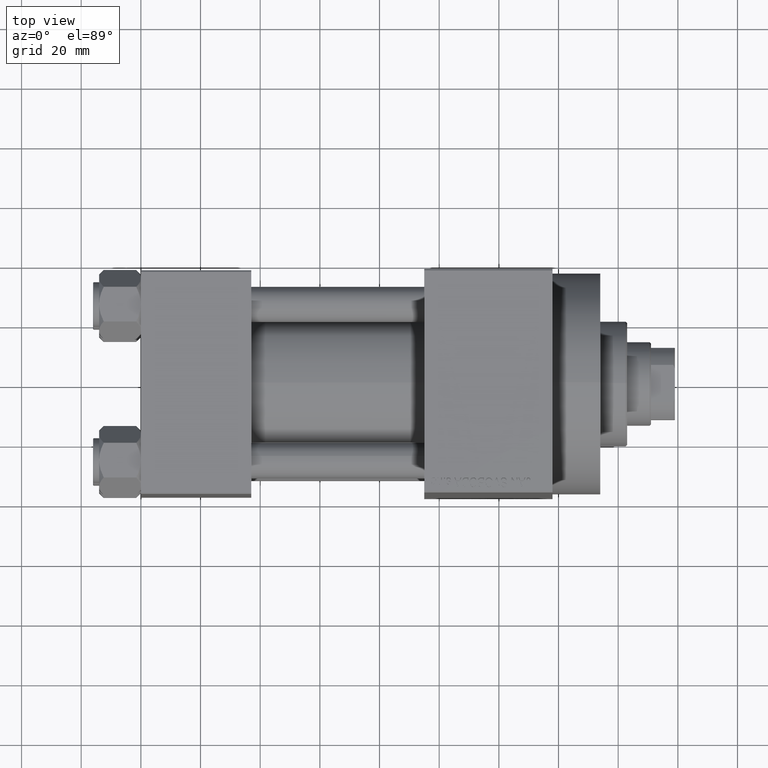
[diagram: clean part render]
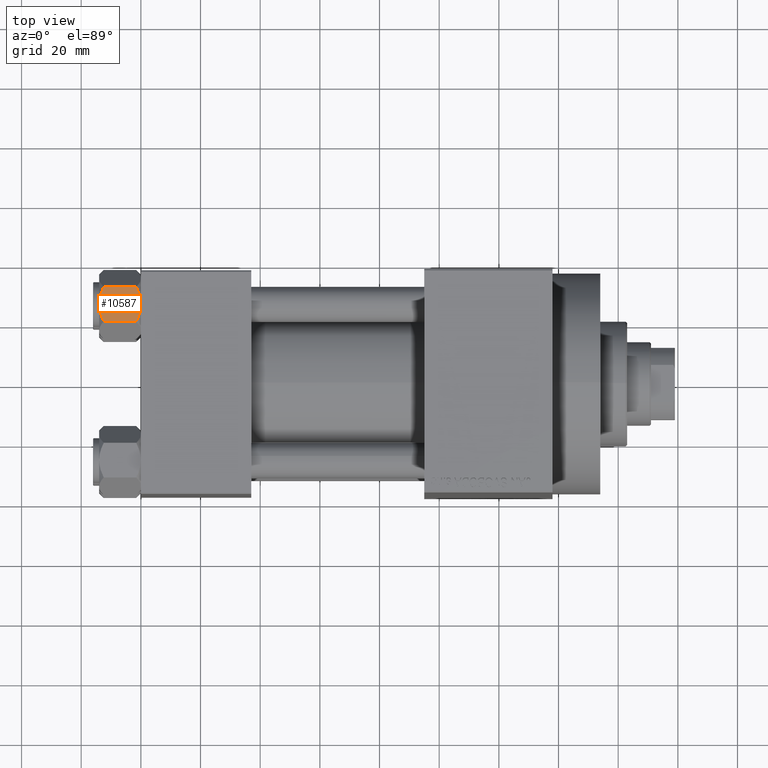
[diagram: same view with one face highlighted and labeled with its STEP entity id]
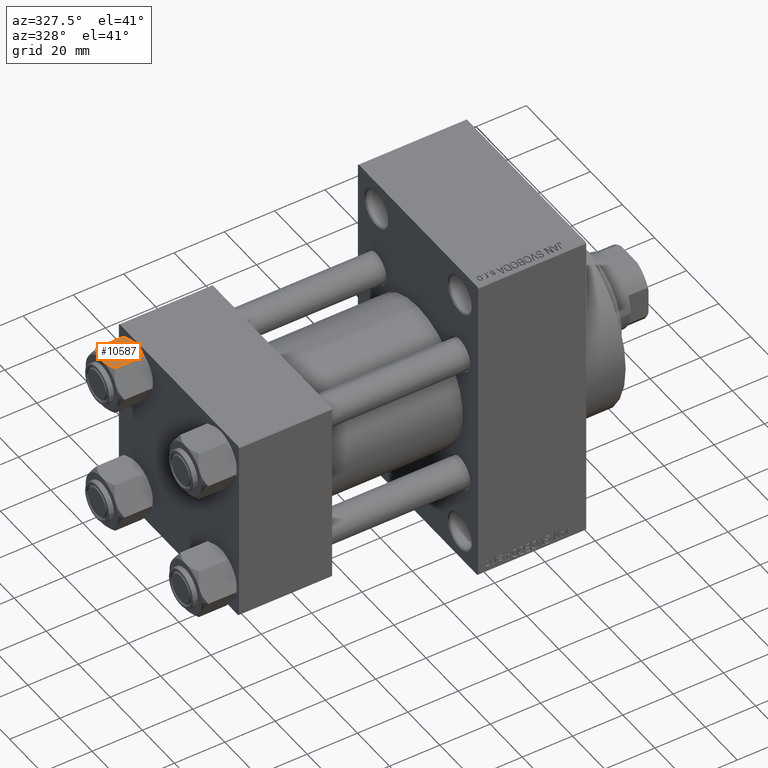
[diagram: same view with one face highlighted and labeled with its STEP entity id]
A machine part, top view. The second image highlights one B-rep face of the part: STEP entity #10587.
A second angle (auxiliary view) of the same face is appended — the face is thin or edge-on in the first view.
In plain terms, the highlighted planar face has unit normal (0, -0, -1).
Its self-contained STEP definition (entity closure, byte-faithful):
#7 = VERTEX_POINT ( 'NONE', #5562 ) ;
#352 = CARTESIAN_POINT ( 'NONE',  ( 5.359707691559671972, -10.06321519197517667, -12.66836134619534882 ) ) ;
#746 = DIRECTION ( 'NONE',  ( -0.000000000000000000, -0.000000000000000000, 1.000000000000000000 ) ) ;
#829 = CARTESIAN_POINT ( 'NONE',  ( -5.359707691559672860, -10.06321519197517844, -1.331638653804651851 ) ) ;
#2285 = EDGE_CURVE ( 'NONE', #33653, #7, #34844, .T. ) ;
#3007 = CARTESIAN_POINT ( 'NONE',  ( 5.810000000000000497, -10.06321519197517667, -12.44321519197518811 ) ) ;
#3084 = VERTEX_POINT ( 'NONE', #16521 ) ;
#4303 = CARTESIAN_POINT ( 'NONE',  ( 3.960942496020604331, -10.06321519197518022, -0.7115728323610380768 ) ) ;
#4661 = CARTESIAN_POINT ( 'NONE',  ( -2.013954290287968352, -10.06321519197517844, -0.1570111679759963463 ) ) ;
#5562 = CARTESIAN_POINT ( 'NONE',  ( 5.810000000000000497, -10.06321519197517667, -1.556784808024811895 ) ) ;
#6783 = CARTESIAN_POINT ( 'NONE',  ( 1.502314598737159623E-15, -10.06321519197518199, -14.00000000000000000 ) ) ;
#7096 = CARTESIAN_POINT ( 'NONE',  ( -5.810000000000000497, -10.06321519197517844, -14.00000000000000000 ) ) ;
#7391 = VERTEX_POINT ( 'NONE', #14021 ) ;
#7664 = LINE ( 'NONE', #22252, #33289 ) ;
#7709 = EDGE_CURVE ( 'NONE', #3084, #7391, #41711, .T. ) ;
#10587 = ADVANCED_FACE ( 'NONE', ( #47008 ), #17427, .F. ) ;
#11347 = CARTESIAN_POINT ( 'NONE',  ( -4.900668367960793859, -10.06321519197517667, -1.121556683709771463 ) ) ;
#11947 = ORIENTED_EDGE ( 'NONE', *, *, #41982, .F. ) ;
#13500 = CARTESIAN_POINT ( 'NONE',  ( -3.960942496020602555, -10.06321519197517844, -13.28842716763896270 ) ) ;
#13963 = CARTESIAN_POINT ( 'NONE',  ( -5.810000000000000497, -10.06321519197517844, -12.44321519197518633 ) ) ;
#13976 = CARTESIAN_POINT ( 'NONE',  ( 3.474497094393254493, -10.06321519197517667, -13.42730390989572520 ) ) ;
#14021 = CARTESIAN_POINT ( 'NONE',  ( -5.810000000000000497, -10.06321519197517844, -12.44321519197518633 ) ) ;
#14312 = DIRECTION ( 'NONE',  ( -1.492877345935290102E-16, 1.000000000000000000, 0.000000000000000000 ) ) ;
#14925 = CARTESIAN_POINT ( 'NONE',  ( 4.900668367960795635, -10.06321519197517667, -12.87844331629023564 ) ) ;
#15271 = CARTESIAN_POINT ( 'NONE',  ( 5.810000000000000497, -10.06321519197517667, -1.556784808024811895 ) ) ;
#16521 = CARTESIAN_POINT ( 'NONE',  ( 1.502314598737159623E-15, -10.06321519197518199, -14.00000000000000000 ) ) ;
#17427 = PLANE ( 'NONE',  #43945 ) ;
#17542 = CARTESIAN_POINT ( 'NONE',  ( -0.5112014849988885112, -10.06321519197517844, -13.99019602057109246 ) ) ;
#17780 = CARTESIAN_POINT ( 'NONE',  ( -1.772424303831127590, -10.06321519197517667, -13.86611290782776784 ) ) ;
#21148 = CARTESIAN_POINT ( 'NONE',  ( 1.502314598737159623E-15, -10.06321519197518199, -14.00000000000000000 ) ) ;
#21217 = LINE ( 'NONE', #7096, #29136 ) ;
#22252 = CARTESIAN_POINT ( 'NONE',  ( 5.810000000000000497, -10.06321519197517667, -14.00000000000000000 ) ) ;
#22443 = CARTESIAN_POINT ( 'NONE',  ( 0.5112014849988879561, -10.06321519197517667, -0.009803979428909967431 ) ) ;
#24805 = CARTESIAN_POINT ( 'NONE',  ( 5.810000000000000497, -10.06321519197517667, -14.00000000000000000 ) ) ;
#25026 = B_SPLINE_CURVE_WITH_KNOTS ( 'NONE', 3,
 ( #3007, #352, #14925, #43089, #13976, #36161, #43329, #21148 ),
 .UNSPECIFIED., .F., .F.,
 ( 4, 2, 2, 4 ),
 ( 0.01467889604968879158, 0.01619420351931634763, 0.01770951098894390369, 0.02074012592819901926 ),
 .UNSPECIFIED. ) ;
#25244 = DIRECTION ( 'NONE',  ( -0.000000000000000000, -0.000000000000000000, 1.000000000000000000 ) ) ;
#25305 = CARTESIAN_POINT ( 'NONE',  ( 1.018274738099083976, -10.06321519197517667, -0.04822742080070548110 ) ) ;
#26139 = CARTESIAN_POINT ( 'NONE',  ( -1.020132157807625450, -10.06321519197517489, 4.052205619664572033E-15 ) ) ;
#26853 = CARTESIAN_POINT ( 'NONE',  ( -5.810000000000000497, -10.06321519197517844, -1.556784808024813893 ) ) ;
#28009 = VERTEX_POINT ( 'NONE', #29556 ) ;
#28058 = CARTESIAN_POINT ( 'NONE',  ( -4.908816193182382825, -10.06321519197518022, -12.89380709538399650 ) ) ;
#29136 = VECTOR ( 'NONE', #25244, 1000.000000000000000 ) ;
#29556 = CARTESIAN_POINT ( 'NONE',  ( -5.810000000000000497, -10.06321519197517844, -1.556784808024813893 ) ) ;
#29725 = CARTESIAN_POINT ( 'NONE',  ( 1.502314598737159623E-15, -10.06321519197518199, 0.000000000000000000 ) ) ;
#31606 = CARTESIAN_POINT ( 'NONE',  ( 5.810000000000000497, -10.06321519197517667, -12.44321519197518811 ) ) ;
#31990 = DIRECTION ( 'NONE',  ( -1.000000000000000000, -1.492877345935290102E-16, 0.000000000000000000 ) ) ;
#32112 = CARTESIAN_POINT ( 'NONE',  ( -2.508586450168039494, -10.06321519197517844, -13.70242473679677353 ) ) ;
#32221 = EDGE_CURVE ( 'NONE', #7391, #28009, #21217, .T. ) ;
#32343 = CARTESIAN_POINT ( 'NONE',  ( -1.018274738099084864, -10.06321519197518022, -13.95177257919929303 ) ) ;
#32955 = CARTESIAN_POINT ( 'NONE',  ( 4.908816193182381937, -10.06321519197517844, -1.106192904616003059 ) ) ;
#33289 = VECTOR ( 'NONE', #746, 1000.000000000000000 ) ;
#33610 = B_SPLINE_CURVE_WITH_KNOTS ( 'NONE', 3,
 ( #26853, #829, #11347, #34013, #41167, #4661, #26139, #29725 ),
 .UNSPECIFIED., .F., .F.,
 ( 4, 2, 2, 4 ),
 ( 0.01467889604968879332, 0.01619420351931635110, 0.01770951098894390716, 0.02074012592819902273 ),
 .UNSPECIFIED. ) ;
#33653 = VERTEX_POINT ( 'NONE', #41178 ) ;
#34013 = CARTESIAN_POINT ( 'NONE',  ( -3.958929922320420403, -10.06321519197517844, -0.7421398502353970805 ) ) ;
#34778 = ORIENTED_EDGE ( 'NONE', *, *, #42855, .T. ) ;
#34844 = B_SPLINE_CURVE_WITH_KNOTS ( 'NONE', 3,
 ( #43691, #40570, #22443, #25305, #44160, #40801, #4303, #32955, #15271 ),
 .UNSPECIFIED., .F., .F.,
 ( 4, 2, 1, 2, 4 ),
 ( 0.02074012592819902273, 0.02149589804477578664, 0.02225167016135255402, 0.02376321439450608530, 0.02678630286081314441 ),
 .UNSPECIFIED. ) ;
#36161 = CARTESIAN_POINT ( 'NONE',  ( 2.013954290287968796, -10.06321519197517667, -13.84298883202400532 ) ) ;
#38506 = VERTEX_POINT ( 'NONE', #31606 ) ;
#38556 = ORIENTED_EDGE ( 'NONE', *, *, #32221, .F. ) ;
#38778 = EDGE_LOOP ( 'NONE', ( #11947, #34778, #46296, #45354, #38556, #42786 ) ) ;
#39712 = EDGE_CURVE ( 'NONE', #28009, #33653, #33610, .T. ) ;
#40570 = CARTESIAN_POINT ( 'NONE',  ( 0.2543996698847484361, -10.06321519197517667, 4.398642095091581661E-15 ) ) ;
#40801 = CARTESIAN_POINT ( 'NONE',  ( 2.508586450168040827, -10.06321519197517667, -0.2975752632032254708 ) ) ;
#41167 = CARTESIAN_POINT ( 'NONE',  ( -3.474497094393254937, -10.06321519197517844, -0.5726960901042742469 ) ) ;
#41178 = CARTESIAN_POINT ( 'NONE',  ( 1.502314598737159623E-15, -10.06321519197518199, 0.000000000000000000 ) ) ;
#41711 = B_SPLINE_CURVE_WITH_KNOTS ( 'NONE', 3,
 ( #6783, #46199, #17542, #32343, #17780, #32112, #13500, #28058, #13963 ),
 .UNSPECIFIED., .F., .F.,
 ( 4, 2, 1, 2, 4 ),
 ( 0.02074012592819901926, 0.02149589804477578664, 0.02225167016135255055, 0.02376321439450608183, 0.02678630286081314094 ),
 .UNSPECIFIED. ) ;
#41982 = EDGE_CURVE ( 'NONE', #38506, #3084, #25026, .T. ) ;
#42786 = ORIENTED_EDGE ( 'NONE', *, *, #7709, .F. ) ;
#42855 = EDGE_CURVE ( 'NONE', #38506, #7, #7664, .T. ) ;
#43089 = CARTESIAN_POINT ( 'NONE',  ( 3.958929922320421291, -10.06321519197517489, -13.25786014976460514 ) ) ;
#43329 = CARTESIAN_POINT ( 'NONE',  ( 1.020132157807625228, -10.06321519197517667, -14.00000000000000533 ) ) ;
#43691 = CARTESIAN_POINT ( 'NONE',  ( 1.502314598737159623E-15, -10.06321519197518199, 0.000000000000000000 ) ) ;
#43945 = AXIS2_PLACEMENT_3D ( 'NONE', #24805, #14312, #31990 ) ;
#44160 = CARTESIAN_POINT ( 'NONE',  ( 1.772424303831126258, -10.06321519197517311, -0.1338870921722345175 ) ) ;
#45354 = ORIENTED_EDGE ( 'NONE', *, *, #39712, .F. ) ;
#46199 = CARTESIAN_POINT ( 'NONE',  ( -0.2543996698847484916, -10.06321519197517844, -14.00000000000000888 ) ) ;
#46296 = ORIENTED_EDGE ( 'NONE', *, *, #2285, .F. ) ;
#47008 = FACE_OUTER_BOUND ( 'NONE', #38778, .T. ) ;